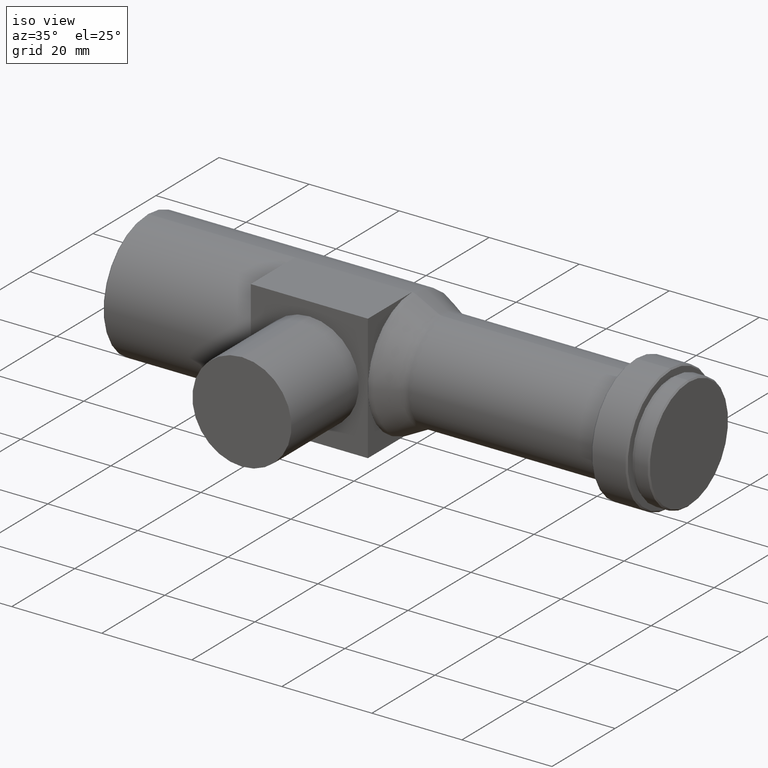
[diagram: clean part render]
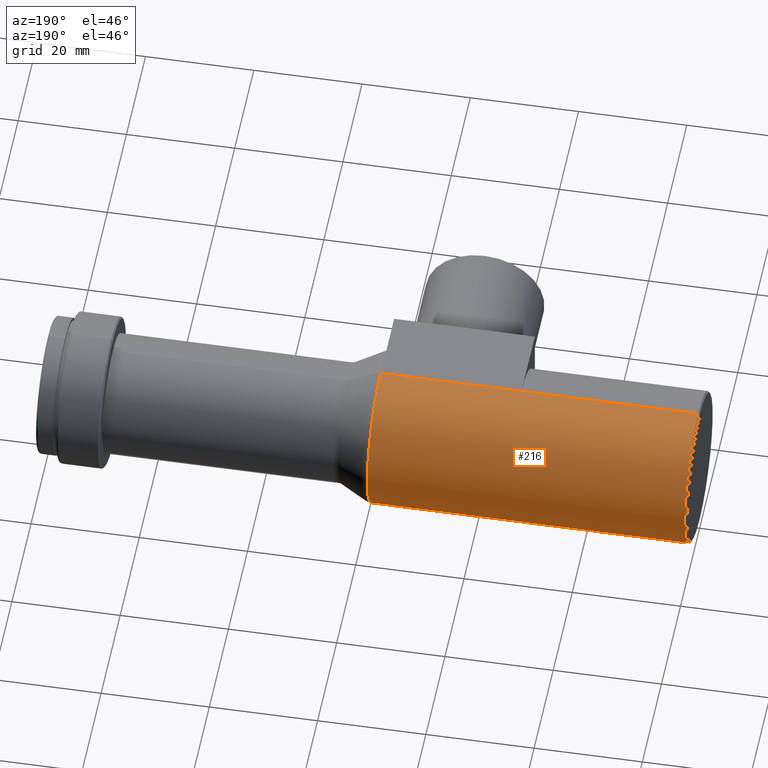
[diagram: tour spotlight — one face highlighted and labeled with its STEP entity id]
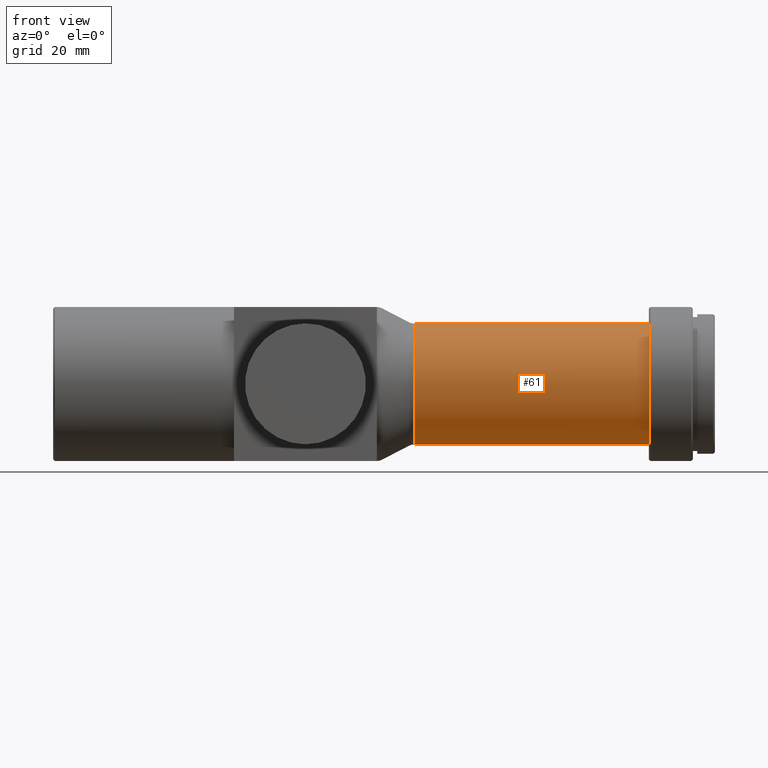
[diagram: tour spotlight — one face highlighted and labeled with its STEP entity id]
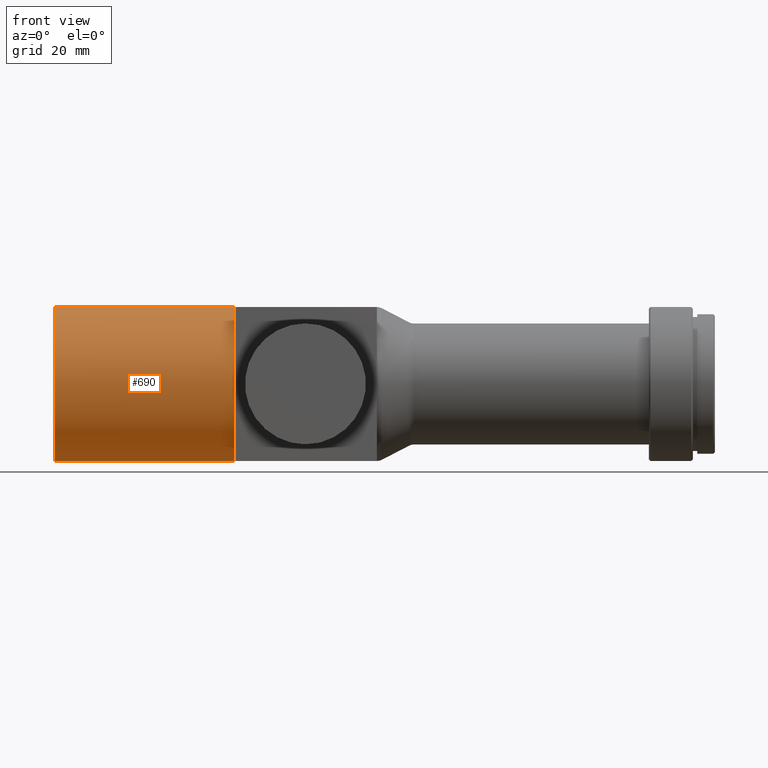
[diagram: tour spotlight — one face highlighted and labeled with its STEP entity id]
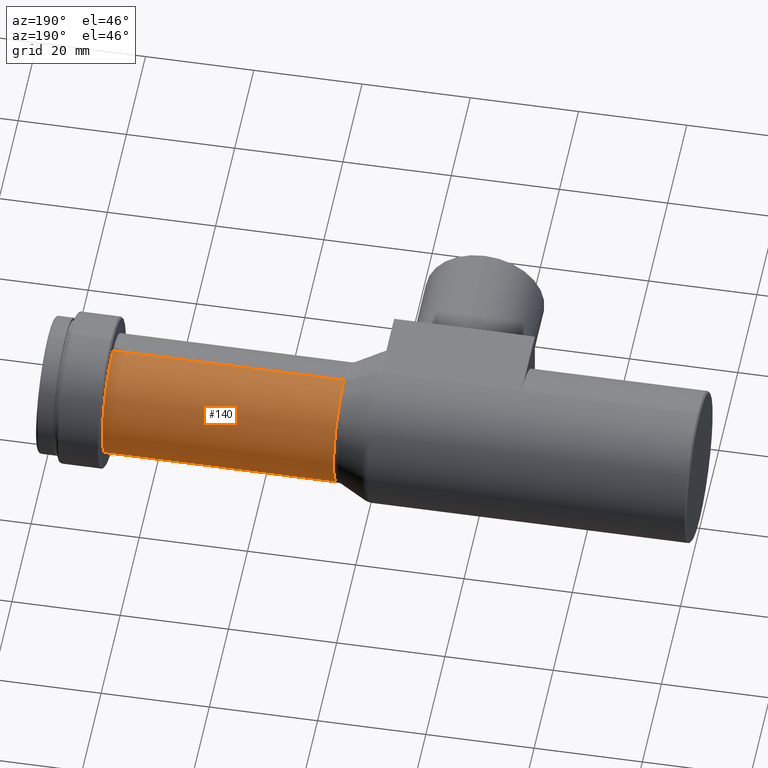
[diagram: tour spotlight — one face highlighted and labeled with its STEP entity id]
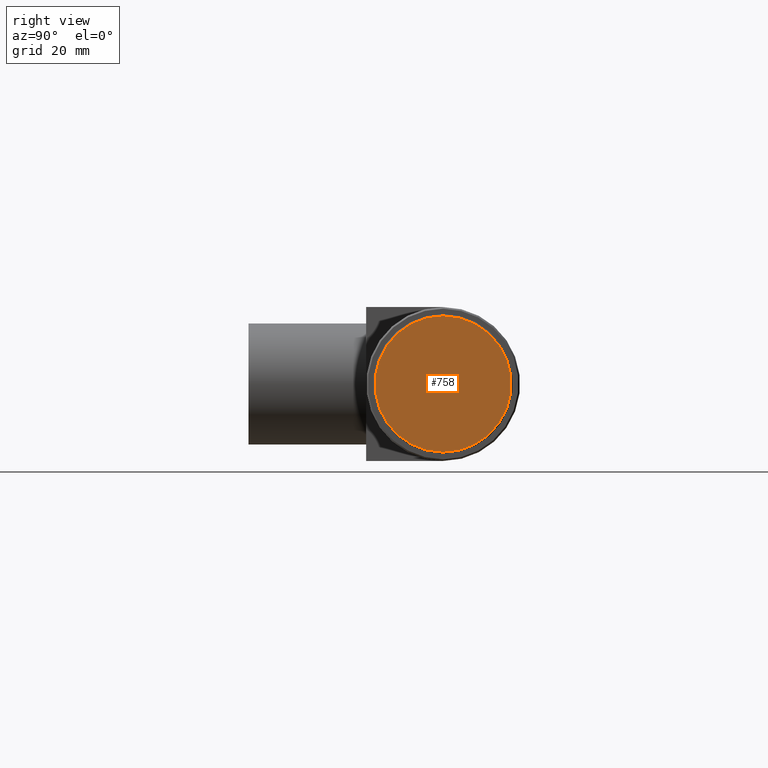
[diagram: tour spotlight — one face highlighted and labeled with its STEP entity id]
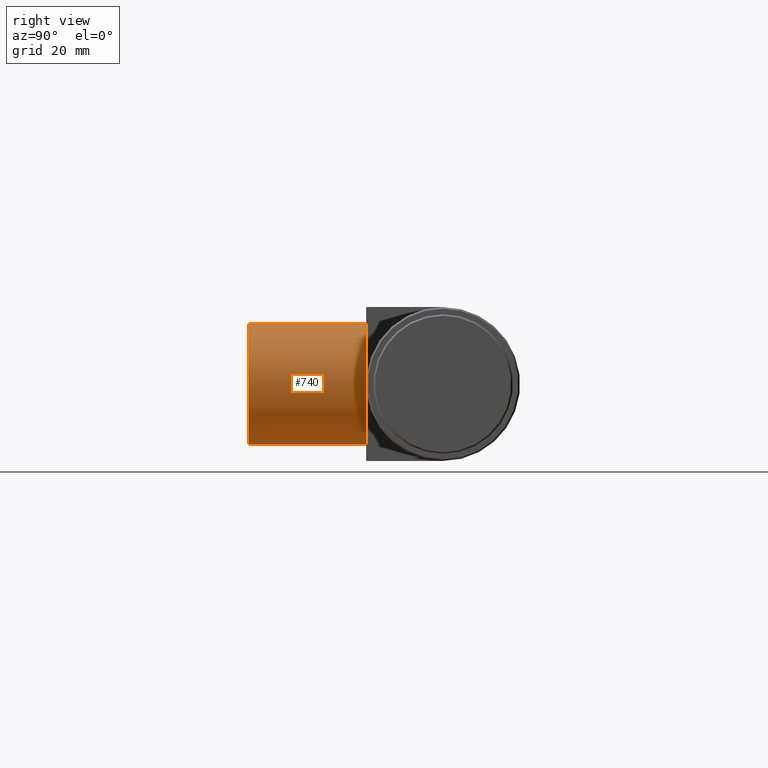
[diagram: tour spotlight — one face highlighted and labeled with its STEP entity id]
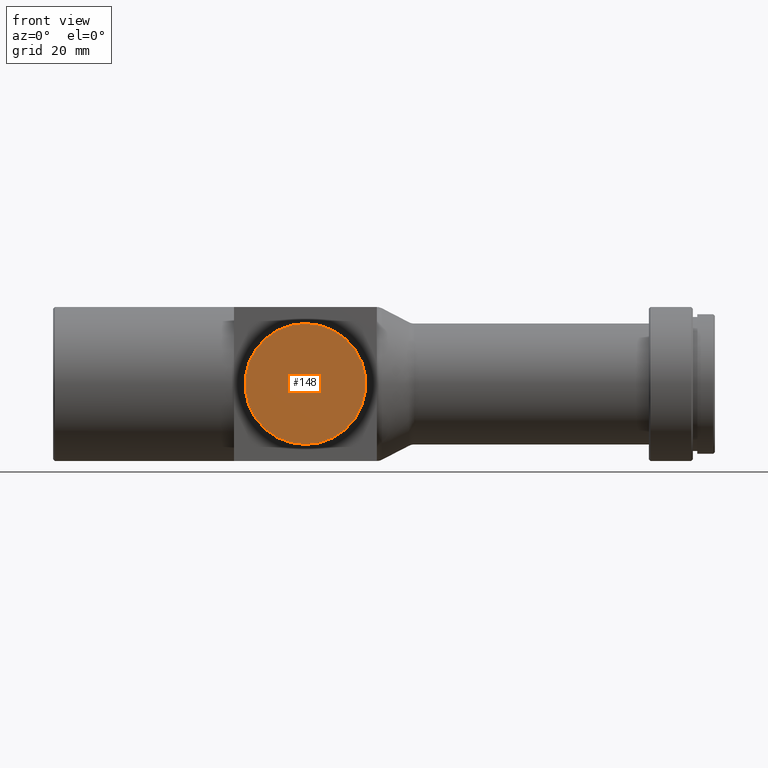
[diagram: tour spotlight — one face highlighted and labeled with its STEP entity id]
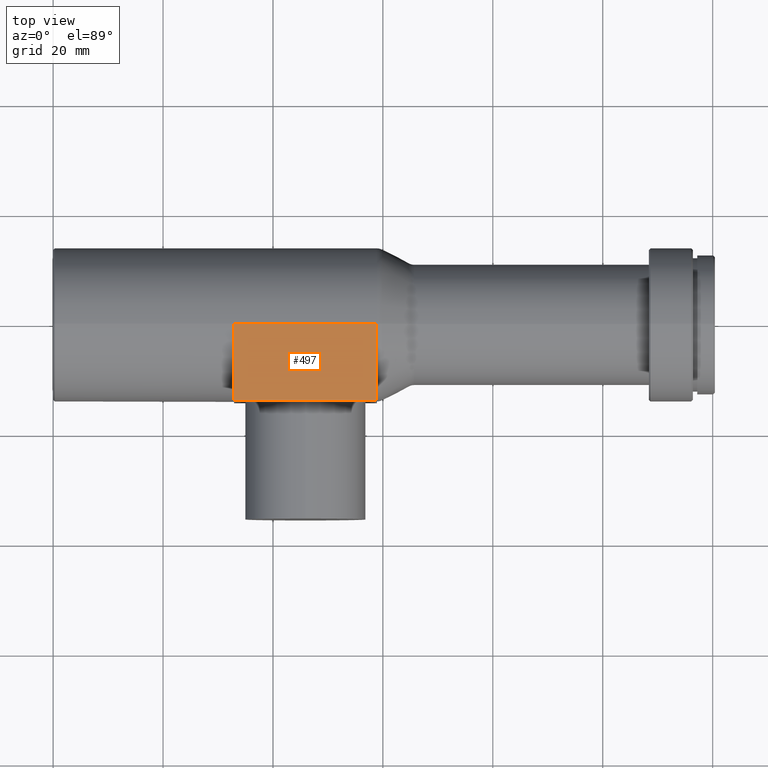
[diagram: tour spotlight — one face highlighted and labeled with its STEP entity id]
A machine part: a face-by-face anatomy tour. The part has 40 B-rep faces; the first image is the clean iso view, then the 8 largest visible faces are spotlighted one at a time (largest first), each with its STEP entity span.

Face 1 — auxiliary view, entity #216. In plain terms, the highlighted cylindrical surface (partial cylindrical patch) has radius 14 mm, axis along (-1, -0, -0).
Definition (entity closure, byte-faithful):
#5 = VERTEX_POINT ( 'NONE', #514 ) ;
#6 = LINE ( 'NONE', #364, #724 ) ;
#11 = DIRECTION ( 'NONE',  ( -1.000000000000000000, -0.0000000000000000000, -0.0000000000000000000 ) ) ;
#18 = LINE ( 'NONE', #309, #931 ) ;
#38 = VERTEX_POINT ( 'NONE', #855 ) ;
#47 = CARTESIAN_POINT ( 'NONE',  ( 0.0000000000000000000, 1.714505518806294400E-015, -13.99999999999999800 ) ) ;
#52 = DIRECTION ( 'NONE',  ( -1.000000000000000000, -0.0000000000000000000, -0.0000000000000000000 ) ) ;
#64 = VERTEX_POINT ( 'NONE', #582 ) ;
#76 = VECTOR ( 'NONE', #52, 1000.000000000000000 ) ;
#102 = DIRECTION ( 'NONE',  ( -1.000000000000000000, -0.0000000000000000000, -0.0000000000000000000 ) ) ;
#109 = EDGE_CURVE ( 'NONE', #38, #666, #6, .T. ) ;
#125 = EDGE_CURVE ( 'NONE', #1083, #616, #374, .T. ) ;
#135 = ORIENTED_EDGE ( 'NONE', *, *, #695, .T. ) ;
#168 = AXIS2_PLACEMENT_3D ( 'NONE', #546, #630, #1040 ) ;
#205 = DIRECTION ( 'NONE',  ( -1.000000000000000000, -0.0000000000000000000, -0.0000000000000000000 ) ) ;
#216 = ADVANCED_FACE ( 'NONE', ( #843 ), #532, .T. ) ;
#222 = VECTOR ( 'NONE', #824, 1000.000000000000000 ) ;
#238 = ORIENTED_EDGE ( 'NONE', *, *, #405, .T. ) ;
#248 = AXIS2_PLACEMENT_3D ( 'NONE', #965, #877, #874 ) ;
#252 = VERTEX_POINT ( 'NONE', #367 ) ;
#263 = ORIENTED_EDGE ( 'NONE', *, *, #873, .F. ) ;
#274 = CIRCLE ( 'NONE', #168, 13.99999999999999800 ) ;
#293 = EDGE_CURVE ( 'NONE', #5, #616, #372, .T. ) ;
#299 = CARTESIAN_POINT ( 'NONE',  ( 32.89999999999999900, 0.0000000000000000000, 14.00000000000000000 ) ) ;
#309 = CARTESIAN_POINT ( 'NONE',  ( 32.89999999999999900, 0.0000000000000000000, -14.00000000000000000 ) ) ;
#342 = CARTESIAN_POINT ( 'NONE',  ( 0.2999999999999999900, 1.714505518806294800E-015, -14.00000000000000200 ) ) ;
#364 = CARTESIAN_POINT ( 'NONE',  ( 0.0000000000000000000, 0.0000000000000000000, 13.99999999999999800 ) ) ;
#367 = CARTESIAN_POINT ( 'NONE',  ( 58.89999999999999100, 0.0000000000000000000, -14.00000000000000000 ) ) ;
#372 = LINE ( 'NONE', #47, #222 ) ;
#374 = CIRCLE ( 'NONE', #1073, 14.00000000000000000 ) ;
#405 = EDGE_CURVE ( 'NONE', #252, #5, #18, .T. ) ;
#415 = CARTESIAN_POINT ( 'NONE',  ( 32.89999999999999900, 0.0000000000000000000, 14.00000000000000000 ) ) ;
#428 = CARTESIAN_POINT ( 'NONE',  ( 0.0000000000000000000, 0.0000000000000000000, 13.99999999999999800 ) ) ;
#477 = EDGE_CURVE ( 'NONE', #64, #252, #599, .T. ) ;
#492 = ORIENTED_EDGE ( 'NONE', *, *, #477, .T. ) ;
#514 = CARTESIAN_POINT ( 'NONE',  ( 32.89999999999999900, 0.0000000000000000000, -13.99999999999999800 ) ) ;
#526 = DIRECTION ( 'NONE',  ( 0.0000000000000000000, 0.0000000000000000000, 1.000000000000000000 ) ) ;
#532 = CYLINDRICAL_SURFACE ( 'NONE', #248, 13.99999999999999800 ) ;
#546 = CARTESIAN_POINT ( 'NONE',  ( 58.91337927538280900, 0.0000000000000000000, 0.0000000000000000000 ) ) ;
#558 = ORIENTED_EDGE ( 'NONE', *, *, #651, .F. ) ;
#582 = CARTESIAN_POINT ( 'NONE',  ( 58.91337927538280900, 1.714505518806294400E-015, -13.99999999999999800 ) ) ;
#583 = LINE ( 'NONE', #428, #610 ) ;
#590 = CARTESIAN_POINT ( 'NONE',  ( 58.89999999999999100, 0.0000000000000000000, 14.00000000000000000 ) ) ;
#599 = LINE ( 'NONE', #846, #653 ) ;
#610 = VECTOR ( 'NONE', #1023, 1000.000000000000000 ) ;
#616 = VERTEX_POINT ( 'NONE', #342 ) ;
#630 = DIRECTION ( 'NONE',  ( -1.000000000000000000, -0.0000000000000000000, -0.0000000000000000000 ) ) ;
#651 = EDGE_CURVE ( 'NONE', #1034, #1083, #583, .T. ) ;
#653 = VECTOR ( 'NONE', #755, 1000.000000000000000 ) ;
#666 = VERTEX_POINT ( 'NONE', #590 ) ;
#695 = EDGE_CURVE ( 'NONE', #38, #64, #274, .T. ) ;
#703 = CARTESIAN_POINT ( 'NONE',  ( 0.2999999999999999900, 0.0000000000000000000, 0.0000000000000000000 ) ) ;
#724 = VECTOR ( 'NONE', #11, 1000.000000000000000 ) ;
#725 = EDGE_LOOP ( 'NONE', ( #135, #492, #238, #831, #856, #558, #263, #1071 ) ) ;
#755 = DIRECTION ( 'NONE',  ( -1.000000000000000000, -0.0000000000000000000, -0.0000000000000000000 ) ) ;
#824 = DIRECTION ( 'NONE',  ( -1.000000000000000000, -0.0000000000000000000, -0.0000000000000000000 ) ) ;
#831 = ORIENTED_EDGE ( 'NONE', *, *, #293, .T. ) ;
#843 = FACE_OUTER_BOUND ( 'NONE', #725, .T. ) ;
#846 = CARTESIAN_POINT ( 'NONE',  ( 0.0000000000000000000, 1.714505518806294400E-015, -13.99999999999999800 ) ) ;
#855 = CARTESIAN_POINT ( 'NONE',  ( 58.91337927538280900, 0.0000000000000000000, 13.99999999999999800 ) ) ;
#856 = ORIENTED_EDGE ( 'NONE', *, *, #125, .F. ) ;
#873 = EDGE_CURVE ( 'NONE', #666, #1034, #876, .T. ) ;
#874 = DIRECTION ( 'NONE',  ( 0.0000000000000000000, 0.0000000000000000000, 1.000000000000000000 ) ) ;
#876 = LINE ( 'NONE', #299, #76 ) ;
#877 = DIRECTION ( 'NONE',  ( -1.000000000000000000, -0.0000000000000000000, -0.0000000000000000000 ) ) ;
#931 = VECTOR ( 'NONE', #205, 1000.000000000000000 ) ;
#932 = CARTESIAN_POINT ( 'NONE',  ( 0.2999999999999999900, 0.0000000000000000000, 14.00000000000000000 ) ) ;
#965 = CARTESIAN_POINT ( 'NONE',  ( 0.0000000000000000000, 0.0000000000000000000, 0.0000000000000000000 ) ) ;
#1023 = DIRECTION ( 'NONE',  ( -1.000000000000000000, -0.0000000000000000000, -0.0000000000000000000 ) ) ;
#1034 = VERTEX_POINT ( 'NONE', #415 ) ;
#1040 = DIRECTION ( 'NONE',  ( 0.0000000000000000000, 0.0000000000000000000, 1.000000000000000000 ) ) ;
#1071 = ORIENTED_EDGE ( 'NONE', *, *, #109, .F. ) ;
#1073 = AXIS2_PLACEMENT_3D ( 'NONE', #703, #102, #526 ) ;
#1083 = VERTEX_POINT ( 'NONE', #932 ) ;

Face 2 — front view, entity #61. In plain terms, the highlighted cylindrical surface (partial cylindrical patch) has radius 11 mm, axis along (-1, -0, -0).
Definition (entity closure, byte-faithful):
#17 = VECTOR ( 'NONE', #993, 1000.000000000000000 ) ;
#41 = AXIS2_PLACEMENT_3D ( 'NONE', #343, #418, #1024 ) ;
#61 = ADVANCED_FACE ( 'NONE', ( #194 ), #948, .T. ) ;
#66 = EDGE_LOOP ( 'NONE', ( #277, #1044, #319, #657 ) ) ;
#73 = DIRECTION ( 'NONE',  ( 0.0000000000000000000, 0.0000000000000000000, 1.000000000000000000 ) ) ;
#105 = VECTOR ( 'NONE', #729, 1000.000000000000000 ) ;
#132 = CARTESIAN_POINT ( 'NONE',  ( 65.68662072461721400, 0.0000000000000000000, 0.0000000000000000000 ) ) ;
#139 = DIRECTION ( 'NONE',  ( 0.0000000000000000000, 0.0000000000000000000, 1.000000000000000000 ) ) ;
#185 = CIRCLE ( 'NONE', #956, 11.00000000000000200 ) ;
#192 = LINE ( 'NONE', #223, #105 ) ;
#194 = FACE_OUTER_BOUND ( 'NONE', #66, .T. ) ;
#223 = CARTESIAN_POINT ( 'NONE',  ( 0.0000000000000000000, 1.347111479062088400E-015, -11.00000000000000000 ) ) ;
#224 = VERTEX_POINT ( 'NONE', #960 ) ;
#277 = ORIENTED_EDGE ( 'NONE', *, *, #354, .F. ) ;
#319 = ORIENTED_EDGE ( 'NONE', *, *, #851, .T. ) ;
#343 = CARTESIAN_POINT ( 'NONE',  ( 0.0000000000000000000, 0.0000000000000000000, 0.0000000000000000000 ) ) ;
#354 = EDGE_CURVE ( 'NONE', #592, #224, #192, .T. ) ;
#403 = EDGE_CURVE ( 'NONE', #224, #907, #185, .T. ) ;
#418 = DIRECTION ( 'NONE',  ( -1.000000000000000000, -0.0000000000000000000, -0.0000000000000000000 ) ) ;
#499 = CARTESIAN_POINT ( 'NONE',  ( 108.3999999999999900, 1.347111479062088400E-015, -11.00000000000000000 ) ) ;
#530 = LINE ( 'NONE', #561, #17 ) ;
#561 = CARTESIAN_POINT ( 'NONE',  ( 0.0000000000000000000, 0.0000000000000000000, 11.00000000000000000 ) ) ;
#592 = VERTEX_POINT ( 'NONE', #499 ) ;
#656 = CARTESIAN_POINT ( 'NONE',  ( 108.3999999999999900, 0.0000000000000000000, 11.00000000000000000 ) ) ;
#657 = ORIENTED_EDGE ( 'NONE', *, *, #403, .F. ) ;
#676 = CARTESIAN_POINT ( 'NONE',  ( 108.3999999999999900, 0.0000000000000000000, 0.0000000000000000000 ) ) ;
#729 = DIRECTION ( 'NONE',  ( -1.000000000000000000, -0.0000000000000000000, -0.0000000000000000000 ) ) ;
#810 = CIRCLE ( 'NONE', #839, 11.00000000000000000 ) ;
#839 = AXIS2_PLACEMENT_3D ( 'NONE', #676, #1089, #73 ) ;
#851 = EDGE_CURVE ( 'NONE', #884, #907, #530, .T. ) ;
#884 = VERTEX_POINT ( 'NONE', #656 ) ;
#907 = VERTEX_POINT ( 'NONE', #914 ) ;
#914 = CARTESIAN_POINT ( 'NONE',  ( 65.68662072461721400, 0.0000000000000000000, 11.00000000000000200 ) ) ;
#948 = CYLINDRICAL_SURFACE ( 'NONE', #41, 11.00000000000000000 ) ;
#956 = AXIS2_PLACEMENT_3D ( 'NONE', #132, #987, #139 ) ;
#960 = CARTESIAN_POINT ( 'NONE',  ( 65.68662072461721400, 1.360800869613109900E-015, -11.00000000000000200 ) ) ;
#987 = DIRECTION ( 'NONE',  ( -1.000000000000000000, -0.0000000000000000000, -0.0000000000000000000 ) ) ;
#993 = DIRECTION ( 'NONE',  ( -1.000000000000000000, -0.0000000000000000000, -0.0000000000000000000 ) ) ;
#1024 = DIRECTION ( 'NONE',  ( 0.0000000000000000000, 0.0000000000000000000, 1.000000000000000000 ) ) ;
#1044 = ORIENTED_EDGE ( 'NONE', *, *, #1048, .T. ) ;
#1048 = EDGE_CURVE ( 'NONE', #592, #884, #810, .T. ) ;
#1089 = DIRECTION ( 'NONE',  ( -1.000000000000000000, -0.0000000000000000000, -0.0000000000000000000 ) ) ;

Face 3 — front view, entity #690. In plain terms, the highlighted cylindrical surface (partial cylindrical patch) has radius 14 mm, axis along (-1, -0, -0).
Definition (entity closure, byte-faithful):
#5 = VERTEX_POINT ( 'NONE', #514 ) ;
#47 = CARTESIAN_POINT ( 'NONE',  ( 0.0000000000000000000, 1.714505518806294400E-015, -13.99999999999999800 ) ) ;
#48 = FACE_OUTER_BOUND ( 'NONE', #842, .T. ) ;
#85 = EDGE_CURVE ( 'NONE', #1017, #5, #1054, .T. ) ;
#120 = ORIENTED_EDGE ( 'NONE', *, *, #651, .T. ) ;
#121 = DIRECTION ( 'NONE',  ( -1.000000000000000000, -0.0000000000000000000, -0.0000000000000000000 ) ) ;
#162 = CARTESIAN_POINT ( 'NONE',  ( 32.89999999999999900, -14.00000000000000000, 0.0000000000000000000 ) ) ;
#186 = EDGE_CURVE ( 'NONE', #616, #1083, #395, .T. ) ;
#190 = AXIS2_PLACEMENT_3D ( 'NONE', #864, #693, #356 ) ;
#199 = CARTESIAN_POINT ( 'NONE',  ( 0.2999999999999999900, 0.0000000000000000000, 0.0000000000000000000 ) ) ;
#222 = VECTOR ( 'NONE', #824, 1000.000000000000000 ) ;
#269 = ORIENTED_EDGE ( 'NONE', *, *, #186, .F. ) ;
#270 = DIRECTION ( 'NONE',  ( -1.000000000000000000, -0.0000000000000000000, -0.0000000000000000000 ) ) ;
#271 = EDGE_CURVE ( 'NONE', #1034, #1017, #1078, .T. ) ;
#293 = EDGE_CURVE ( 'NONE', #5, #616, #372, .T. ) ;
#342 = CARTESIAN_POINT ( 'NONE',  ( 0.2999999999999999900, 1.714505518806294800E-015, -14.00000000000000200 ) ) ;
#356 = DIRECTION ( 'NONE',  ( 0.0000000000000000000, 0.0000000000000000000, -1.000000000000000000 ) ) ;
#372 = LINE ( 'NONE', #47, #222 ) ;
#376 = ORIENTED_EDGE ( 'NONE', *, *, #271, .F. ) ;
#395 = CIRCLE ( 'NONE', #1096, 14.00000000000000000 ) ;
#415 = CARTESIAN_POINT ( 'NONE',  ( 32.89999999999999900, 0.0000000000000000000, 14.00000000000000000 ) ) ;
#428 = CARTESIAN_POINT ( 'NONE',  ( 0.0000000000000000000, 0.0000000000000000000, 13.99999999999999800 ) ) ;
#509 = ORIENTED_EDGE ( 'NONE', *, *, #85, .F. ) ;
#514 = CARTESIAN_POINT ( 'NONE',  ( 32.89999999999999900, 0.0000000000000000000, -13.99999999999999800 ) ) ;
#583 = LINE ( 'NONE', #428, #610 ) ;
#591 = AXIS2_PLACEMENT_3D ( 'NONE', #613, #270, #886 ) ;
#610 = VECTOR ( 'NONE', #1023, 1000.000000000000000 ) ;
#613 = CARTESIAN_POINT ( 'NONE',  ( 0.0000000000000000000, 0.0000000000000000000, 0.0000000000000000000 ) ) ;
#616 = VERTEX_POINT ( 'NONE', #342 ) ;
#651 = EDGE_CURVE ( 'NONE', #1034, #1083, #583, .T. ) ;
#690 = ADVANCED_FACE ( 'NONE', ( #48 ), #1012, .T. ) ;
#693 = DIRECTION ( 'NONE',  ( 1.000000000000000000, 0.0000000000000000000, 0.0000000000000000000 ) ) ;
#742 = DIRECTION ( 'NONE',  ( 1.000000000000000000, 0.0000000000000000000, 0.0000000000000000000 ) ) ;
#808 = CARTESIAN_POINT ( 'NONE',  ( 32.89999999999999900, 0.0000000000000000000, 0.0000000000000000000 ) ) ;
#824 = DIRECTION ( 'NONE',  ( -1.000000000000000000, -0.0000000000000000000, -0.0000000000000000000 ) ) ;
#842 = EDGE_LOOP ( 'NONE', ( #917, #509, #376, #120, #269 ) ) ;
#864 = CARTESIAN_POINT ( 'NONE',  ( 32.89999999999999900, 0.0000000000000000000, 0.0000000000000000000 ) ) ;
#886 = DIRECTION ( 'NONE',  ( 0.0000000000000000000, 0.0000000000000000000, 1.000000000000000000 ) ) ;
#917 = ORIENTED_EDGE ( 'NONE', *, *, #293, .F. ) ;
#932 = CARTESIAN_POINT ( 'NONE',  ( 0.2999999999999999900, 0.0000000000000000000, 14.00000000000000000 ) ) ;
#992 = DIRECTION ( 'NONE',  ( 0.0000000000000000000, 0.0000000000000000000, -1.000000000000000000 ) ) ;
#1012 = CYLINDRICAL_SURFACE ( 'NONE', #591, 13.99999999999999800 ) ;
#1017 = VERTEX_POINT ( 'NONE', #162 ) ;
#1023 = DIRECTION ( 'NONE',  ( -1.000000000000000000, -0.0000000000000000000, -0.0000000000000000000 ) ) ;
#1034 = VERTEX_POINT ( 'NONE', #415 ) ;
#1051 = AXIS2_PLACEMENT_3D ( 'NONE', #808, #742, #992 ) ;
#1054 = CIRCLE ( 'NONE', #190, 13.99999999999999800 ) ;
#1057 = DIRECTION ( 'NONE',  ( 0.0000000000000000000, 0.0000000000000000000, 1.000000000000000000 ) ) ;
#1078 = CIRCLE ( 'NONE', #1051, 13.99999999999999800 ) ;
#1083 = VERTEX_POINT ( 'NONE', #932 ) ;
#1096 = AXIS2_PLACEMENT_3D ( 'NONE', #199, #121, #1057 ) ;

Face 4 — auxiliary view, entity #140. In plain terms, the highlighted cylindrical surface (partial cylindrical patch) has radius 11 mm, axis along (-1, -0, -0).
Definition (entity closure, byte-faithful):
#17 = VECTOR ( 'NONE', #993, 1000.000000000000000 ) ;
#104 = ORIENTED_EDGE ( 'NONE', *, *, #240, .F. ) ;
#105 = VECTOR ( 'NONE', #729, 1000.000000000000000 ) ;
#140 = ADVANCED_FACE ( 'NONE', ( #439 ), #351, .T. ) ;
#183 = DIRECTION ( 'NONE',  ( 0.0000000000000000000, 0.0000000000000000000, 1.000000000000000000 ) ) ;
#192 = LINE ( 'NONE', #223, #105 ) ;
#196 = ORIENTED_EDGE ( 'NONE', *, *, #851, .F. ) ;
#209 = ORIENTED_EDGE ( 'NONE', *, *, #677, .T. ) ;
#223 = CARTESIAN_POINT ( 'NONE',  ( 0.0000000000000000000, 1.347111479062088400E-015, -11.00000000000000000 ) ) ;
#224 = VERTEX_POINT ( 'NONE', #960 ) ;
#240 = EDGE_CURVE ( 'NONE', #907, #224, #622, .T. ) ;
#351 = CYLINDRICAL_SURFACE ( 'NONE', #572, 11.00000000000000000 ) ;
#354 = EDGE_CURVE ( 'NONE', #592, #224, #192, .T. ) ;
#379 = DIRECTION ( 'NONE',  ( 0.0000000000000000000, 0.0000000000000000000, 1.000000000000000000 ) ) ;
#386 = AXIS2_PLACEMENT_3D ( 'NONE', #796, #885, #1055 ) ;
#439 = FACE_OUTER_BOUND ( 'NONE', #615, .T. ) ;
#470 = AXIS2_PLACEMENT_3D ( 'NONE', #719, #606, #379 ) ;
#499 = CARTESIAN_POINT ( 'NONE',  ( 108.3999999999999900, 1.347111479062088400E-015, -11.00000000000000000 ) ) ;
#530 = LINE ( 'NONE', #561, #17 ) ;
#561 = CARTESIAN_POINT ( 'NONE',  ( 0.0000000000000000000, 0.0000000000000000000, 11.00000000000000000 ) ) ;
#572 = AXIS2_PLACEMENT_3D ( 'NONE', #704, #605, #183 ) ;
#592 = VERTEX_POINT ( 'NONE', #499 ) ;
#605 = DIRECTION ( 'NONE',  ( -1.000000000000000000, -0.0000000000000000000, -0.0000000000000000000 ) ) ;
#606 = DIRECTION ( 'NONE',  ( -1.000000000000000000, -0.0000000000000000000, -0.0000000000000000000 ) ) ;
#615 = EDGE_LOOP ( 'NONE', ( #209, #1000, #104, #196 ) ) ;
#622 = CIRCLE ( 'NONE', #386, 11.00000000000000200 ) ;
#656 = CARTESIAN_POINT ( 'NONE',  ( 108.3999999999999900, 0.0000000000000000000, 11.00000000000000000 ) ) ;
#677 = EDGE_CURVE ( 'NONE', #884, #592, #696, .T. ) ;
#696 = CIRCLE ( 'NONE', #470, 11.00000000000000000 ) ;
#704 = CARTESIAN_POINT ( 'NONE',  ( 0.0000000000000000000, 0.0000000000000000000, 0.0000000000000000000 ) ) ;
#719 = CARTESIAN_POINT ( 'NONE',  ( 108.3999999999999900, 0.0000000000000000000, 0.0000000000000000000 ) ) ;
#729 = DIRECTION ( 'NONE',  ( -1.000000000000000000, -0.0000000000000000000, -0.0000000000000000000 ) ) ;
#796 = CARTESIAN_POINT ( 'NONE',  ( 65.68662072461721400, 0.0000000000000000000, 0.0000000000000000000 ) ) ;
#851 = EDGE_CURVE ( 'NONE', #884, #907, #530, .T. ) ;
#884 = VERTEX_POINT ( 'NONE', #656 ) ;
#885 = DIRECTION ( 'NONE',  ( -1.000000000000000000, -0.0000000000000000000, -0.0000000000000000000 ) ) ;
#907 = VERTEX_POINT ( 'NONE', #914 ) ;
#914 = CARTESIAN_POINT ( 'NONE',  ( 65.68662072461721400, 0.0000000000000000000, 11.00000000000000200 ) ) ;
#960 = CARTESIAN_POINT ( 'NONE',  ( 65.68662072461721400, 1.360800869613109900E-015, -11.00000000000000200 ) ) ;
#993 = DIRECTION ( 'NONE',  ( -1.000000000000000000, -0.0000000000000000000, -0.0000000000000000000 ) ) ;
#1000 = ORIENTED_EDGE ( 'NONE', *, *, #354, .T. ) ;
#1055 = DIRECTION ( 'NONE',  ( 0.0000000000000000000, 0.0000000000000000000, 1.000000000000000000 ) ) ;

Face 5 — right view, entity #758. In plain terms, the highlighted planar face has unit normal (-1, 0, -0).
Definition (entity closure, byte-faithful):
#129 = CIRCLE ( 'NONE', #1088, 12.40000000000000400 ) ;
#163 = DIRECTION ( 'NONE',  ( -1.000000000000000000, -0.0000000000000000000, -0.0000000000000000000 ) ) ;
#217 = DIRECTION ( 'NONE',  ( 0.0000000000000000000, 0.0000000000000000000, 1.000000000000000000 ) ) ;
#243 = CARTESIAN_POINT ( 'NONE',  ( 120.4000000000000100, 0.0000000000000000000, 0.0000000000000000000 ) ) ;
#255 = DIRECTION ( 'NONE',  ( 0.0000000000000000000, 0.0000000000000000000, 1.000000000000000000 ) ) ;
#279 = AXIS2_PLACEMENT_3D ( 'NONE', #1037, #869, #807 ) ;
#301 = CIRCLE ( 'NONE', #688, 12.40000000000000400 ) ;
#310 = DIRECTION ( 'NONE',  ( -1.000000000000000000, -0.0000000000000000000, -0.0000000000000000000 ) ) ;
#398 = CARTESIAN_POINT ( 'NONE',  ( 120.4000000000000100, 1.536931732929928600E-015, -12.40000000000000400 ) ) ;
#426 = VERTEX_POINT ( 'NONE', #994 ) ;
#441 = ORIENTED_EDGE ( 'NONE', *, *, #818, .F. ) ;
#460 = FACE_OUTER_BOUND ( 'NONE', #949, .T. ) ;
#614 = EDGE_CURVE ( 'NONE', #426, #1053, #129, .T. ) ;
#688 = AXIS2_PLACEMENT_3D ( 'NONE', #735, #310, #217 ) ;
#735 = CARTESIAN_POINT ( 'NONE',  ( 120.4000000000000100, 0.0000000000000000000, 0.0000000000000000000 ) ) ;
#758 = ADVANCED_FACE ( 'NONE', ( #460 ), #781, .F. ) ;
#781 = PLANE ( 'NONE',  #279 ) ;
#807 = DIRECTION ( 'NONE',  ( -0.0000000000000000000, 0.0000000000000000000, 1.000000000000000000 ) ) ;
#818 = EDGE_CURVE ( 'NONE', #1053, #426, #301, .T. ) ;
#869 = DIRECTION ( 'NONE',  ( -1.000000000000000000, 0.0000000000000000000, -0.0000000000000000000 ) ) ;
#949 = EDGE_LOOP ( 'NONE', ( #1110, #441 ) ) ;
#994 = CARTESIAN_POINT ( 'NONE',  ( 120.4000000000000100, 0.0000000000000000000, 12.40000000000000400 ) ) ;
#1037 = CARTESIAN_POINT ( 'NONE',  ( 120.4000000000000100, 12.40000000000000400, 0.0000000000000000000 ) ) ;
#1053 = VERTEX_POINT ( 'NONE', #398 ) ;
#1088 = AXIS2_PLACEMENT_3D ( 'NONE', #243, #163, #255 ) ;
#1110 = ORIENTED_EDGE ( 'NONE', *, *, #614, .F. ) ;

Face 6 — right view, entity #740. In plain terms, the highlighted cylindrical surface (partial cylindrical patch) has radius 11 mm, axis along (-0, 1, -0).
Definition (entity closure, byte-faithful):
#46 = EDGE_CURVE ( 'NONE', #396, #584, #489, .T. ) ;
#60 = CARTESIAN_POINT ( 'NONE',  ( 45.89999999999999900, -35.39999999999999900, -10.99999999999999600 ) ) ;
#63 = EDGE_CURVE ( 'NONE', #584, #829, #1081, .T. ) ;
#70 = DIRECTION ( 'NONE',  ( -0.0000000000000000000, 1.000000000000000000, -0.0000000000000000000 ) ) ;
#90 = DIRECTION ( 'NONE',  ( -0.0000000000000000000, 1.000000000000000000, -0.0000000000000000000 ) ) ;
#174 = CARTESIAN_POINT ( 'NONE',  ( 45.89999999999999900, 0.0000000000000000000, -10.99999999999999600 ) ) ;
#242 = AXIS2_PLACEMENT_3D ( 'NONE', #836, #1003, #925 ) ;
#335 = ORIENTED_EDGE ( 'NONE', *, *, #604, .T. ) ;
#347 = CARTESIAN_POINT ( 'NONE',  ( 45.89999999999999900, -14.00000000000000000, 10.99999999999999600 ) ) ;
#377 = DIRECTION ( 'NONE',  ( 0.0000000000000000000, 0.0000000000000000000, 1.000000000000000000 ) ) ;
#384 = CARTESIAN_POINT ( 'NONE',  ( 45.89999999999999900, -35.39999999999999900, 10.99999999999999600 ) ) ;
#393 = AXIS2_PLACEMENT_3D ( 'NONE', #525, #952, #377 ) ;
#396 = VERTEX_POINT ( 'NONE', #384 ) ;
#408 = FACE_OUTER_BOUND ( 'NONE', #1069, .T. ) ;
#437 = VECTOR ( 'NONE', #90, 1000.000000000000000 ) ;
#465 = CARTESIAN_POINT ( 'NONE',  ( 45.89999999999999900, -14.00000000000000000, -10.99999999999999600 ) ) ;
#489 = LINE ( 'NONE', #1099, #973 ) ;
#501 = DIRECTION ( 'NONE',  ( -0.0000000000000000000, 1.000000000000000000, -0.0000000000000000000 ) ) ;
#504 = LINE ( 'NONE', #174, #437 ) ;
#510 = EDGE_CURVE ( 'NONE', #396, #921, #1107, .T. ) ;
#525 = CARTESIAN_POINT ( 'NONE',  ( 45.89999999999999900, 0.0000000000000000000, 0.0000000000000000000 ) ) ;
#535 = AXIS2_PLACEMENT_3D ( 'NONE', #579, #70, #669 ) ;
#579 = CARTESIAN_POINT ( 'NONE',  ( 45.89999999999999900, -14.00000000000000000, 0.0000000000000000000 ) ) ;
#584 = VERTEX_POINT ( 'NONE', #347 ) ;
#604 = EDGE_CURVE ( 'NONE', #921, #829, #504, .T. ) ;
#669 = DIRECTION ( 'NONE',  ( 0.0000000000000000000, 0.0000000000000000000, 1.000000000000000000 ) ) ;
#722 = CYLINDRICAL_SURFACE ( 'NONE', #393, 10.99999999999999600 ) ;
#726 = ORIENTED_EDGE ( 'NONE', *, *, #63, .F. ) ;
#740 = ADVANCED_FACE ( 'NONE', ( #408 ), #722, .T. ) ;
#766 = ORIENTED_EDGE ( 'NONE', *, *, #510, .T. ) ;
#829 = VERTEX_POINT ( 'NONE', #465 ) ;
#836 = CARTESIAN_POINT ( 'NONE',  ( 45.89999999999999900, -35.39999999999999900, 0.0000000000000000000 ) ) ;
#844 = ORIENTED_EDGE ( 'NONE', *, *, #46, .F. ) ;
#921 = VERTEX_POINT ( 'NONE', #60 ) ;
#925 = DIRECTION ( 'NONE',  ( 0.0000000000000000000, 0.0000000000000000000, 1.000000000000000000 ) ) ;
#952 = DIRECTION ( 'NONE',  ( -0.0000000000000000000, 1.000000000000000000, -0.0000000000000000000 ) ) ;
#973 = VECTOR ( 'NONE', #501, 1000.000000000000000 ) ;
#1003 = DIRECTION ( 'NONE',  ( -0.0000000000000000000, 1.000000000000000000, -0.0000000000000000000 ) ) ;
#1069 = EDGE_LOOP ( 'NONE', ( #766, #335, #726, #844 ) ) ;
#1081 = CIRCLE ( 'NONE', #535, 10.99999999999999600 ) ;
#1099 = CARTESIAN_POINT ( 'NONE',  ( 45.89999999999999900, 0.0000000000000000000, 10.99999999999999600 ) ) ;
#1107 = CIRCLE ( 'NONE', #242, 10.99999999999999600 ) ;

Face 7 — front view, entity #148. In plain terms, the highlighted planar face has unit normal (0, -1, 0).
Definition (entity closure, byte-faithful):
#7 = ORIENTED_EDGE ( 'NONE', *, *, #562, .F. ) ;
#9 = PLANE ( 'NONE',  #628 ) ;
#60 = CARTESIAN_POINT ( 'NONE',  ( 45.89999999999999900, -35.39999999999999900, -10.99999999999999600 ) ) ;
#82 = CARTESIAN_POINT ( 'NONE',  ( 45.89999999999999900, -35.39999999999999900, 0.0000000000000000000 ) ) ;
#128 = AXIS2_PLACEMENT_3D ( 'NONE', #82, #259, #859 ) ;
#148 = ADVANCED_FACE ( 'NONE', ( #1001 ), #9, .T. ) ;
#242 = AXIS2_PLACEMENT_3D ( 'NONE', #836, #1003, #925 ) ;
#259 = DIRECTION ( 'NONE',  ( -0.0000000000000000000, 1.000000000000000000, -0.0000000000000000000 ) ) ;
#384 = CARTESIAN_POINT ( 'NONE',  ( 45.89999999999999900, -35.39999999999999900, 10.99999999999999600 ) ) ;
#396 = VERTEX_POINT ( 'NONE', #384 ) ;
#510 = EDGE_CURVE ( 'NONE', #396, #921, #1107, .T. ) ;
#562 = EDGE_CURVE ( 'NONE', #921, #396, #1067, .T. ) ;
#600 = CARTESIAN_POINT ( 'NONE',  ( 34.89999999999999900, -35.39999999999999900, 0.0000000000000000000 ) ) ;
#609 = DIRECTION ( 'NONE',  ( 0.0000000000000000000, -0.0000000000000000000, -1.000000000000000000 ) ) ;
#628 = AXIS2_PLACEMENT_3D ( 'NONE', #600, #861, #609 ) ;
#788 = ORIENTED_EDGE ( 'NONE', *, *, #510, .F. ) ;
#836 = CARTESIAN_POINT ( 'NONE',  ( 45.89999999999999900, -35.39999999999999900, 0.0000000000000000000 ) ) ;
#859 = DIRECTION ( 'NONE',  ( 0.0000000000000000000, 0.0000000000000000000, 1.000000000000000000 ) ) ;
#861 = DIRECTION ( 'NONE',  ( 0.0000000000000000000, -1.000000000000000000, 0.0000000000000000000 ) ) ;
#870 = EDGE_LOOP ( 'NONE', ( #788, #7 ) ) ;
#921 = VERTEX_POINT ( 'NONE', #60 ) ;
#925 = DIRECTION ( 'NONE',  ( 0.0000000000000000000, 0.0000000000000000000, 1.000000000000000000 ) ) ;
#1001 = FACE_OUTER_BOUND ( 'NONE', #870, .T. ) ;
#1003 = DIRECTION ( 'NONE',  ( -0.0000000000000000000, 1.000000000000000000, -0.0000000000000000000 ) ) ;
#1067 = CIRCLE ( 'NONE', #128, 10.99999999999999600 ) ;
#1107 = CIRCLE ( 'NONE', #242, 10.99999999999999600 ) ;

Face 8 — top view, entity #497. In plain terms, the highlighted planar face has unit normal (0, 0, -1).
Definition (entity closure, byte-faithful):
#36 = VERTEX_POINT ( 'NONE', #768 ) ;
#43 = DIRECTION ( 'NONE',  ( -0.0000000000000000000, -1.000000000000000000, -0.0000000000000000000 ) ) ;
#52 = DIRECTION ( 'NONE',  ( -1.000000000000000000, -0.0000000000000000000, -0.0000000000000000000 ) ) ;
#75 = EDGE_CURVE ( 'NONE', #36, #666, #397, .T. ) ;
#76 = VECTOR ( 'NONE', #52, 1000.000000000000000 ) ;
#169 = CARTESIAN_POINT ( 'NONE',  ( 58.89999999999999100, -14.00000000000000000, 14.00000000000000000 ) ) ;
#233 = LINE ( 'NONE', #565, #841 ) ;
#244 = DIRECTION ( 'NONE',  ( 0.0000000000000000000, 1.000000000000000000, 0.0000000000000000000 ) ) ;
#297 = EDGE_CURVE ( 'NONE', #1034, #388, #383, .T. ) ;
#299 = CARTESIAN_POINT ( 'NONE',  ( 32.89999999999999900, 0.0000000000000000000, 14.00000000000000000 ) ) ;
#305 = VECTOR ( 'NONE', #244, 1000.000000000000000 ) ;
#373 = ORIENTED_EDGE ( 'NONE', *, *, #297, .T. ) ;
#383 = LINE ( 'NONE', #645, #1045 ) ;
#388 = VERTEX_POINT ( 'NONE', #1075 ) ;
#397 = LINE ( 'NONE', #169, #305 ) ;
#406 = CARTESIAN_POINT ( 'NONE',  ( 0.0000000000000000000, 0.0000000000000000000, 14.00000000000000000 ) ) ;
#415 = CARTESIAN_POINT ( 'NONE',  ( 32.89999999999999900, 0.0000000000000000000, 14.00000000000000000 ) ) ;
#475 = FACE_OUTER_BOUND ( 'NONE', #574, .T. ) ;
#480 = DIRECTION ( 'NONE',  ( -1.000000000000000000, 0.0000000000000000000, -0.0000000000000000000 ) ) ;
#497 = ADVANCED_FACE ( 'NONE', ( #475 ), #1090, .F. ) ;
#565 = CARTESIAN_POINT ( 'NONE',  ( 32.89999999999999900, -14.00000000000000000, 14.00000000000000000 ) ) ;
#574 = EDGE_LOOP ( 'NONE', ( #871, #881, #373, #739 ) ) ;
#590 = CARTESIAN_POINT ( 'NONE',  ( 58.89999999999999100, 0.0000000000000000000, 14.00000000000000000 ) ) ;
#645 = CARTESIAN_POINT ( 'NONE',  ( 32.89999999999999900, -14.00000000000000000, 14.00000000000000000 ) ) ;
#666 = VERTEX_POINT ( 'NONE', #590 ) ;
#728 = DIRECTION ( 'NONE',  ( 1.000000000000000000, 0.0000000000000000000, 0.0000000000000000000 ) ) ;
#739 = ORIENTED_EDGE ( 'NONE', *, *, #863, .T. ) ;
#751 = DIRECTION ( 'NONE',  ( 0.0000000000000000000, 0.0000000000000000000, -1.000000000000000000 ) ) ;
#768 = CARTESIAN_POINT ( 'NONE',  ( 58.89999999999999100, -14.00000000000000000, 14.00000000000000000 ) ) ;
#841 = VECTOR ( 'NONE', #728, 1000.000000000000000 ) ;
#863 = EDGE_CURVE ( 'NONE', #388, #36, #233, .T. ) ;
#871 = ORIENTED_EDGE ( 'NONE', *, *, #75, .T. ) ;
#873 = EDGE_CURVE ( 'NONE', #666, #1034, #876, .T. ) ;
#876 = LINE ( 'NONE', #299, #76 ) ;
#881 = ORIENTED_EDGE ( 'NONE', *, *, #873, .T. ) ;
#913 = AXIS2_PLACEMENT_3D ( 'NONE', #406, #751, #480 ) ;
#1034 = VERTEX_POINT ( 'NONE', #415 ) ;
#1045 = VECTOR ( 'NONE', #43, 1000.000000000000000 ) ;
#1075 = CARTESIAN_POINT ( 'NONE',  ( 32.89999999999999900, -14.00000000000000000, 14.00000000000000000 ) ) ;
#1090 = PLANE ( 'NONE',  #913 ) ;